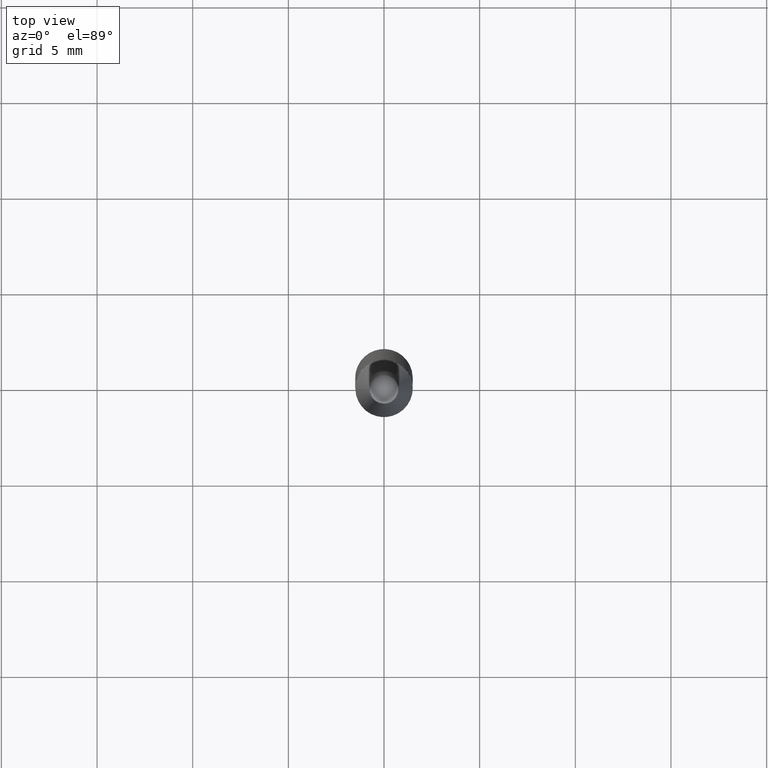
[diagram: clean part render]
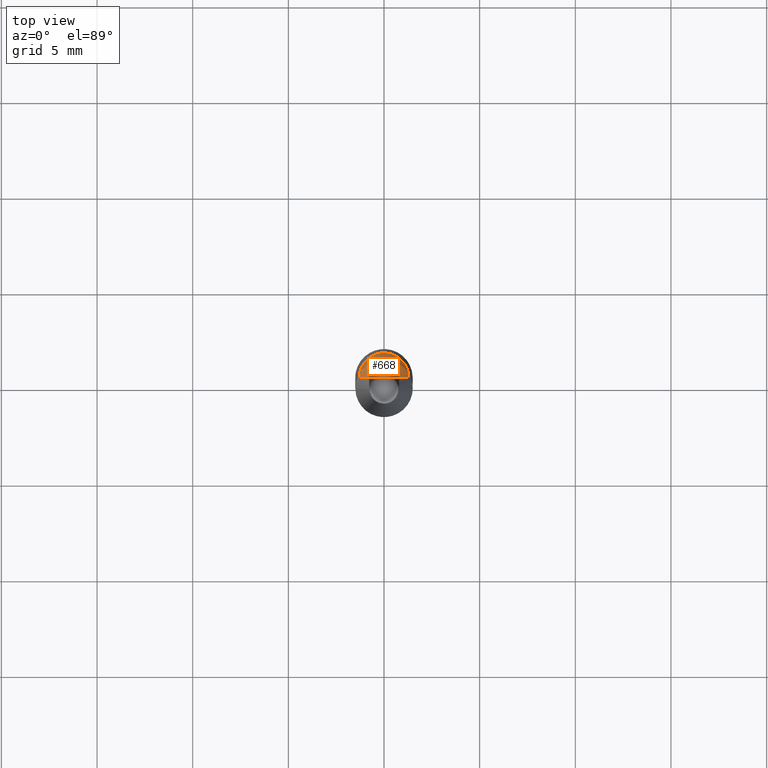
[diagram: same view with one face highlighted and labeled with its STEP entity id]
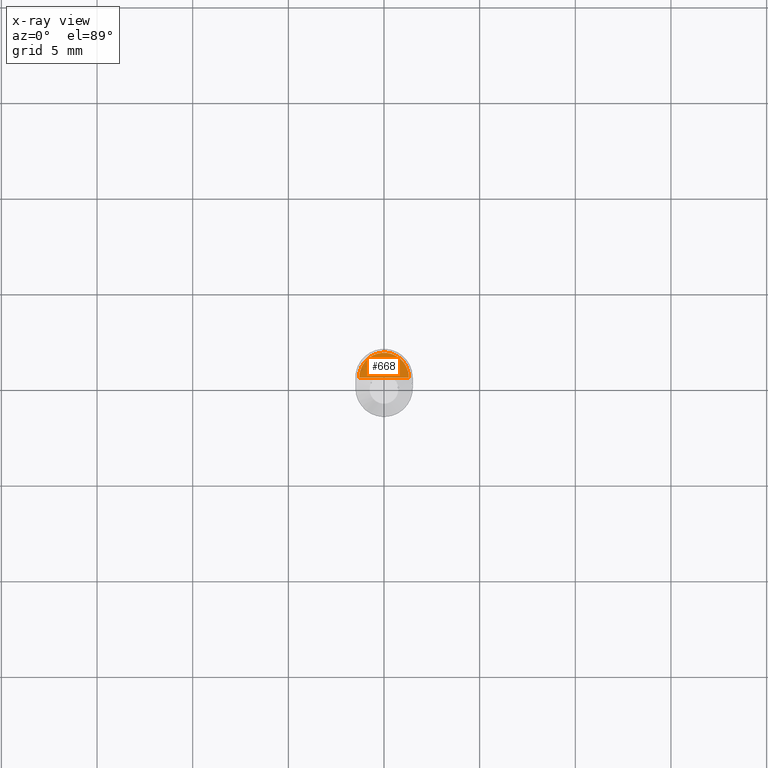
[diagram: x-ray of the same camera — body ghosted, the highlighted face saturated]
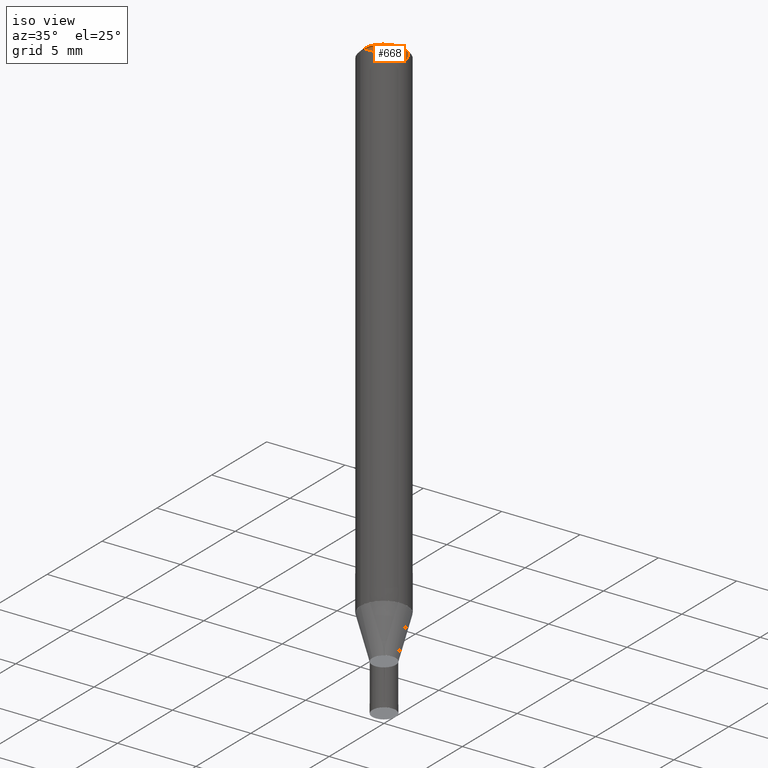
[diagram: same view with one face highlighted and labeled with its STEP entity id]
A machine part, top view. The second image highlights one B-rep face of the part: STEP entity #668.
The next image is the same camera in x-ray: the body ghosted, the highlighted face saturated — about 0% of this face is hidden behind the body in this view.
A second angle (iso view) of the same face is appended — the face is thin or edge-on in the first view.
In plain terms, the highlighted face is a freeform B-spline surface patch.
Its self-contained STEP definition (entity closure, byte-faithful):
#425=CARTESIAN_POINT('',(1.3,0.0,32.2));
#426=CARTESIAN_POINT('',(1.3,1.3,32.2));
#427=CARTESIAN_POINT('',(0.0,1.3,32.2));
#428=CARTESIAN_POINT('',(-1.3,1.3,32.2));
#429=CARTESIAN_POINT('',(-1.3,0.0,32.2));
#430=CARTESIAN_POINT('',(0.0,0.0,32.2));
#653=(
BOUNDED_SURFACE()
B_SPLINE_SURFACE(1,2,(
(#425,#426,#427,#428,#429),
(#430,#430,#430,#430,#430)
), .UNSPECIFIED.,.F.,.F.,.F.)
B_SPLINE_SURFACE_WITH_KNOTS((2,2),(3,2,3),(
0.0,1.0),(
0.0,0.5,1.0), .UNSPECIFIED.)
GEOMETRIC_REPRESENTATION_ITEM()
RATIONAL_B_SPLINE_SURFACE(((1.0,0.707106781187,1.0,0.707106781187,1.0),
(1.0,0.707106781187,1.0,0.707106781187,1.0)
))
REPRESENTATION_ITEM('')
SURFACE()
);
#654=(
BOUNDED_CURVE()
B_SPLINE_CURVE(2,(#429,#428,#427,#426,#425),.UNSPECIFIED.,.F.,.F.)
B_SPLINE_CURVE_WITH_KNOTS((3,2,3),
(0.0,0.5,1.0),.UNSPECIFIED.)
CURVE()
GEOMETRIC_REPRESENTATION_ITEM()
RATIONAL_B_SPLINE_CURVE((1.0,0.707106781187,1.0,0.707106781187,1.0))
REPRESENTATION_ITEM('')
);
#655=(
BOUNDED_CURVE()
B_SPLINE_CURVE(1,(#425,#430),.UNSPECIFIED.,.F.,.F.)
B_SPLINE_CURVE_WITH_KNOTS((2,2),
(0.0,1.0),.UNSPECIFIED.)
CURVE()
GEOMETRIC_REPRESENTATION_ITEM()
RATIONAL_B_SPLINE_CURVE((1.0,1.0))
REPRESENTATION_ITEM('')
);
#656=(
BOUNDED_CURVE()
B_SPLINE_CURVE(1,(#430,#429),.UNSPECIFIED.,.F.,.F.)
B_SPLINE_CURVE_WITH_KNOTS((2,2),
(0.0,1.0),.UNSPECIFIED.)
CURVE()
GEOMETRIC_REPRESENTATION_ITEM()
RATIONAL_B_SPLINE_CURVE((1.0,1.0))
REPRESENTATION_ITEM('')
);
#657=VERTEX_POINT('',#425);
#658=VERTEX_POINT('',#429);
#659=VERTEX_POINT('',#430);
#660=EDGE_CURVE('',#658,#657,#654,.T.);
#661=EDGE_CURVE('',#657,#659,#655,.T.);
#662=EDGE_CURVE('',#659,#658,#656,.T.);
#663=ORIENTED_EDGE('',*,*,#660,.T.);
#664=ORIENTED_EDGE('',*,*,#661,.T.);
#665=ORIENTED_EDGE('',*,*,#662,.T.);
#666=EDGE_LOOP('',(#663,#664,#665));
#667=FACE_OUTER_BOUND('',#666,.T.);
#668=ADVANCED_FACE('',(#667),#653,.T.);